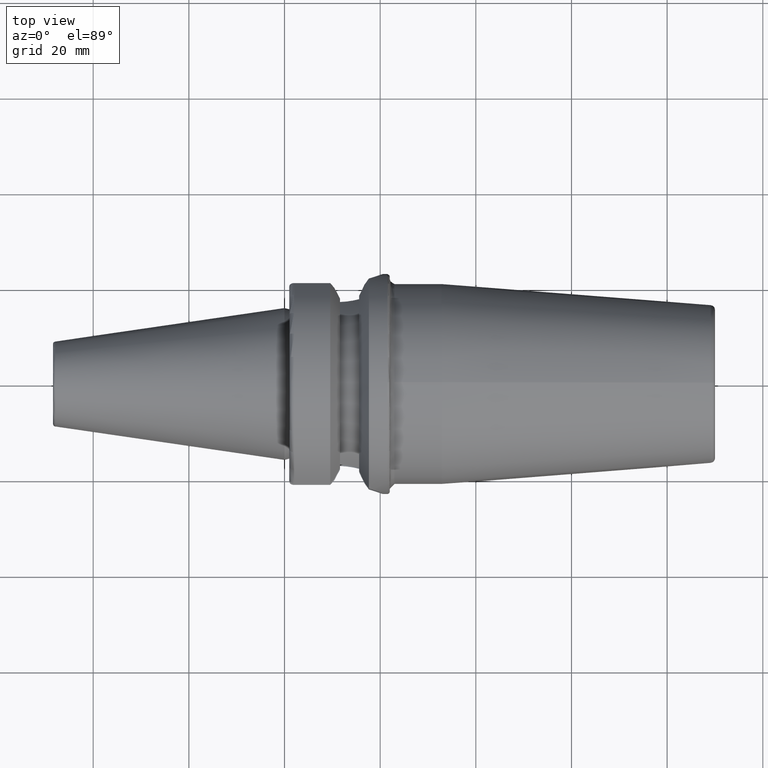
[diagram: clean part render]
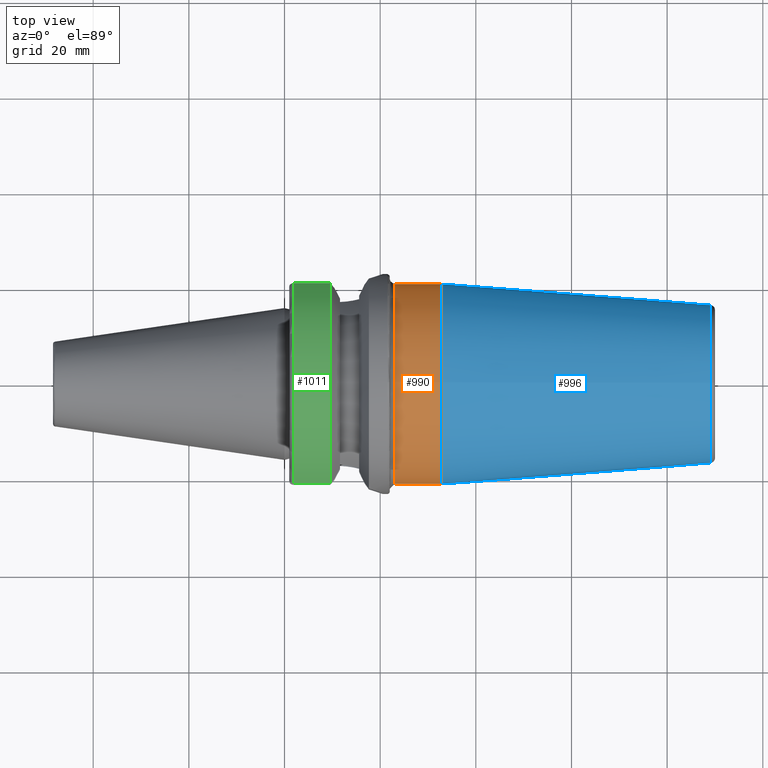
[diagram: same view with three faces highlighted in distinct colors, each labeled with its STEP entity id]
A machine part, top view with three faces highlighted in distinct colors.
Their STEP definitions:

[orange] entity #990 — the highlighted cylindrical surface (bore or boss wall) has radius 21 mm, axis along (1, 0, 0).
#96=LINE('',#1514,#150);
#150=VECTOR('',#1214,21.);
#204=CYLINDRICAL_SURFACE('',#1079,21.);
#221=FACE_OUTER_BOUND('',#283,.T.);
#283=EDGE_LOOP('',(#675,#676,#677,#678,#679));
#351=CIRCLE('',#1075,21.);
#352=CIRCLE('',#1076,21.);
#355=CIRCLE('',#1080,21.);
#415=VERTEX_POINT('',#1504);
#416=VERTEX_POINT('',#1505);
#418=VERTEX_POINT('',#1512);
#515=EDGE_CURVE('',#415,#416,#351,.T.);
#516=EDGE_CURVE('',#416,#415,#352,.T.);
#519=EDGE_CURVE('',#418,#418,#355,.T.);
#520=EDGE_CURVE('',#418,#416,#96,.T.);
#675=ORIENTED_EDGE('',*,*,#519,.F.);
#676=ORIENTED_EDGE('',*,*,#520,.T.);
#677=ORIENTED_EDGE('',*,*,#515,.F.);
#678=ORIENTED_EDGE('',*,*,#516,.F.);
#679=ORIENTED_EDGE('',*,*,#520,.F.);
#990=ADVANCED_FACE('',(#221),#204,.T.);
#1075=AXIS2_PLACEMENT_3D('',#1506,#1202,#1203);
#1076=AXIS2_PLACEMENT_3D('',#1507,#1204,#1205);
#1079=AXIS2_PLACEMENT_3D('',#1511,#1210,#1211);
#1080=AXIS2_PLACEMENT_3D('',#1513,#1212,#1213);
#1202=DIRECTION('center_axis',(-1.,-1.62798202122572E-21,0.));
#1203=DIRECTION('ref_axis',(0.,-1.22464602391782E-16,1.));
#1204=DIRECTION('center_axis',(-1.,-1.62798202122572E-21,0.));
#1205=DIRECTION('ref_axis',(0.,-1.22464602391782E-16,1.));
#1210=DIRECTION('center_axis',(1.,0.,0.));
#1211=DIRECTION('ref_axis',(0.,0.,-1.));
#1212=DIRECTION('center_axis',(1.,0.,0.));
#1213=DIRECTION('ref_axis',(0.,0.,-1.));
#1214=DIRECTION('',(-1.,0.,0.));
#1504=CARTESIAN_POINT('',(23.,-1.62798202113299E-21,-21.));
#1505=CARTESIAN_POINT('',(23.,-2.57175827820944E-15,21.));
#1506=CARTESIAN_POINT('Origin',(23.,0.,0.));
#1507=CARTESIAN_POINT('Origin',(23.,0.,0.));
#1511=CARTESIAN_POINT('Origin',(27.4110393436069,0.,0.));
#1512=CARTESIAN_POINT('',(32.8220786872138,-2.57175827820944E-15,21.));
#1513=CARTESIAN_POINT('Origin',(32.8220786872138,0.,0.));
#1514=CARTESIAN_POINT('',(27.4110393436069,-2.57175827820944E-15,21.));

[blue] entity #996 — the highlighted conical surface has half-angle 4.5 deg.
#54=CONICAL_SURFACE('',#1094,18.75,0.0785398163397447);
#98=LINE('',#1536,#152);
#152=VECTOR('',#1244,18.75);
#227=FACE_OUTER_BOUND('',#291,.T.);
#291=EDGE_LOOP('',(#696,#697,#698,#699));
#355=CIRCLE('',#1080,21.);
#363=CIRCLE('',#1093,16.5725268420749);
#418=VERTEX_POINT('',#1512);
#424=VERTEX_POINT('',#1532);
#519=EDGE_CURVE('',#418,#418,#355,.T.);
#529=EDGE_CURVE('',#424,#424,#363,.T.);
#530=EDGE_CURVE('',#424,#418,#98,.T.);
#696=ORIENTED_EDGE('',*,*,#529,.F.);
#697=ORIENTED_EDGE('',*,*,#530,.T.);
#698=ORIENTED_EDGE('',*,*,#519,.T.);
#699=ORIENTED_EDGE('',*,*,#530,.F.);
#996=ADVANCED_FACE('',(#227),#54,.T.);
#1080=AXIS2_PLACEMENT_3D('',#1513,#1212,#1213);
#1093=AXIS2_PLACEMENT_3D('',#1534,#1240,#1241);
#1094=AXIS2_PLACEMENT_3D('',#1535,#1242,#1243);
#1212=DIRECTION('center_axis',(1.,0.,0.));
#1213=DIRECTION('ref_axis',(0.,0.,-1.));
#1240=DIRECTION('center_axis',(1.,0.,0.));
#1241=DIRECTION('ref_axis',(0.,0.,1.));
#1242=DIRECTION('center_axis',(-1.,0.,0.));
#1243=DIRECTION('ref_axis',(0.,0.,-1.));
#1244=DIRECTION('',(-0.996917333733128,-9.6084680447101E-18,0.0784590957278448));
#1512=CARTESIAN_POINT('',(32.8220786872138,-2.57175827820944E-15,21.));
#1513=CARTESIAN_POINT('Origin',(32.8220786872138,0.,0.));
#1532=CARTESIAN_POINT('',(89.0784590957279,-2.02954919509306E-15,16.5725268420749));
#1534=CARTESIAN_POINT('Origin',(89.0784590957279,-2.02954919509307E-15,
0.));
#1535=CARTESIAN_POINT('Origin',(61.4110393436069,0.,0.));
#1536=CARTESIAN_POINT('',(61.4110393436069,-2.29621274840129E-15,18.75));

[green] entity #1011 — the highlighted cylindrical surface (partial cylindrical patch) has radius 23 mm, axis along (1, 0, 0).
#107=LINE('',#1763,#161);
#110=LINE('',#1796,#164);
#161=VECTOR('',#1307,10.);
#164=VECTOR('',#1320,10.);
#210=CYLINDRICAL_SURFACE('',#1125,23.);
#242=FACE_OUTER_BOUND('',#308,.T.);
#308=EDGE_LOOP('',(#767,#768,#769,#770));
#379=CIRCLE('',#1123,23.);
#381=CIRCLE('',#1126,22.9999999999999);
#457=VERTEX_POINT('',#1758);
#458=VERTEX_POINT('',#1762);
#461=VERTEX_POINT('',#1779);
#463=VERTEX_POINT('',#1794);
#572=EDGE_CURVE('',#457,#458,#107,.T.);
#576=EDGE_CURVE('',#461,#458,#379,.T.);
#579=EDGE_CURVE('',#463,#457,#381,.T.);
#580=EDGE_CURVE('',#461,#463,#110,.T.);
#767=ORIENTED_EDGE('',*,*,#572,.F.);
#768=ORIENTED_EDGE('',*,*,#579,.F.);
#769=ORIENTED_EDGE('',*,*,#580,.F.);
#770=ORIENTED_EDGE('',*,*,#576,.T.);
#1011=ADVANCED_FACE('',(#242),#210,.T.);
#1123=AXIS2_PLACEMENT_3D('',#1780,#1312,#1313);
#1125=AXIS2_PLACEMENT_3D('',#1793,#1316,#1317);
#1126=AXIS2_PLACEMENT_3D('',#1795,#1318,#1319);
#1307=DIRECTION('',(-1.,-1.62798202122572E-21,0.));
#1312=DIRECTION('center_axis',(1.,1.62798202122572E-21,0.));
#1313=DIRECTION('ref_axis',(0.,0.,-1.));
#1316=DIRECTION('center_axis',(1.,1.62798202122572E-21,0.));
#1317=DIRECTION('ref_axis',(0.,1.,0.));
#1318=DIRECTION('center_axis',(1.,1.62798202122572E-21,0.));
#1319=DIRECTION('ref_axis',(0.,0.,-1.));
#1320=DIRECTION('',(1.,1.62798202122572E-21,0.));
#1758=CARTESIAN_POINT('',(9.57005904049382,-20.9334497921535,9.52841433814587));
#1762=CARTESIAN_POINT('',(2.,-20.9334497921536,9.5284143381459));
#1763=CARTESIAN_POINT('',(5.78502952024691,-20.9334497921536,9.52841433814588));
#1779=CARTESIAN_POINT('',(2.,20.9334497921536,9.5284143381459));
#1780=CARTESIAN_POINT('Origin',(2.,2.08173882559189E-15,0.));
#1793=CARTESIAN_POINT('Origin',(5.78502952024691,2.0817449875519E-15,0.));
#1794=CARTESIAN_POINT('',(9.57005904049382,20.9334497921535,9.52841433814587));
#1795=CARTESIAN_POINT('Origin',(9.57005904049382,2.08175114951191E-15,0.));
#1796=CARTESIAN_POINT('',(5.78502952024691,20.9334497921536,9.52841433814588));